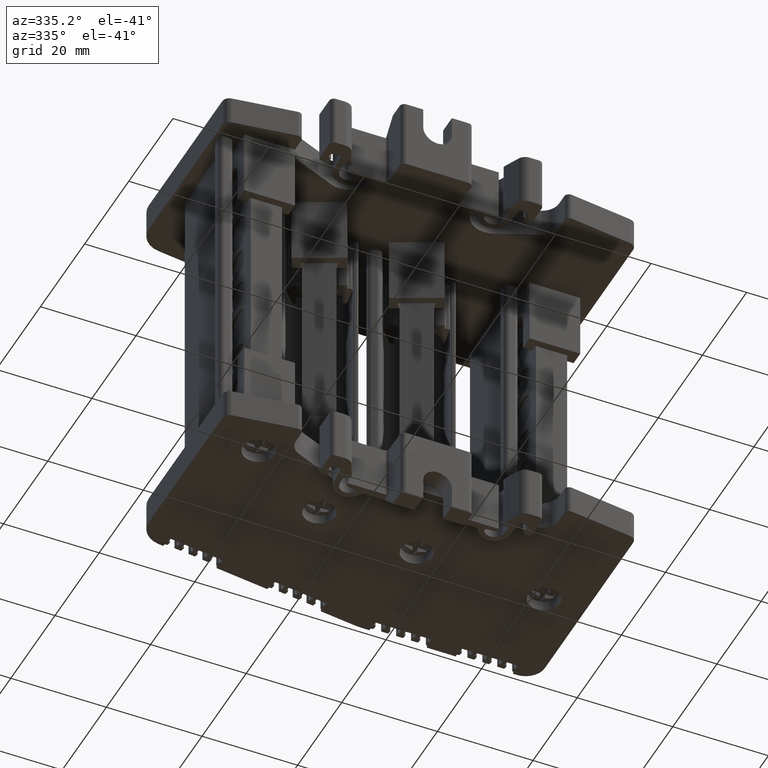
[diagram: clean part render]
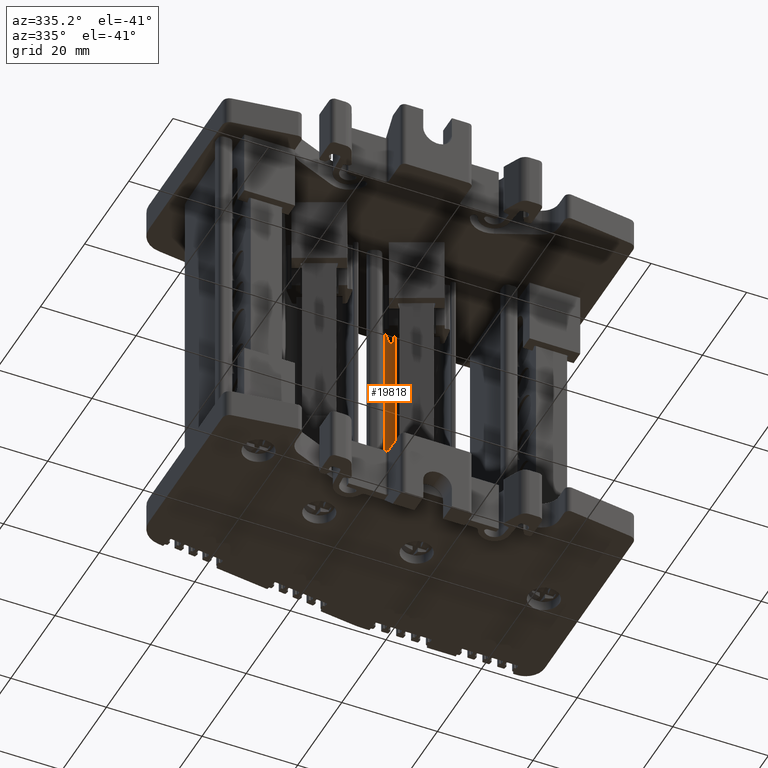
[diagram: same view with one face highlighted and labeled with its STEP entity id]
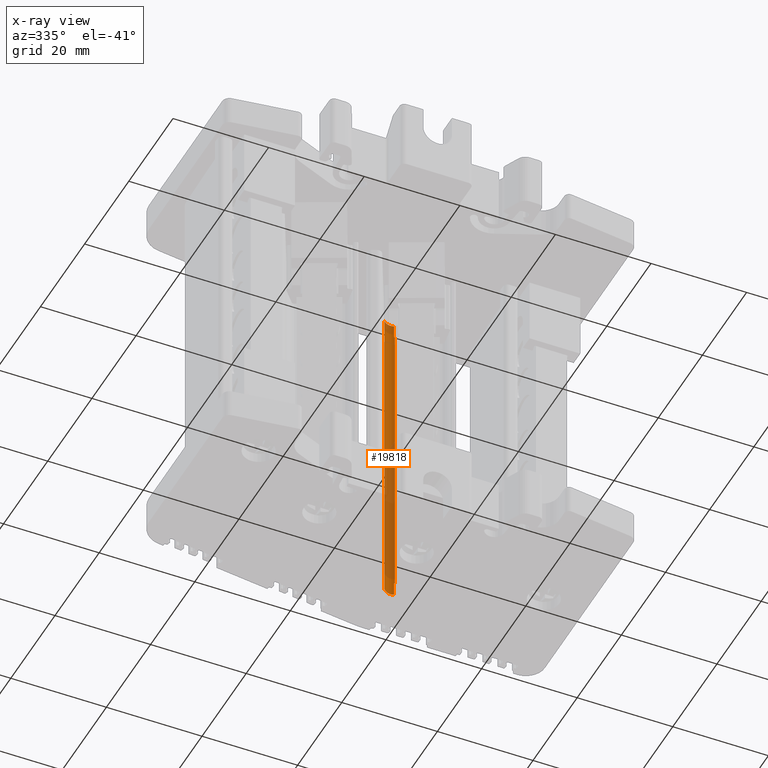
[diagram: x-ray of the same camera — body ghosted, the highlighted face saturated]
A machine part, auxiliary view. The second image highlights one B-rep face of the part: STEP entity #19818.
The next image is the same camera in x-ray: the body ghosted, the highlighted face saturated — about 52% of this face is hidden behind the body in this view.
In plain terms, the highlighted cylindrical surface (edge-blend (fillet) strip) has radius 1.9992 mm, axis along (0, 0, 1).
Its self-contained STEP definition (entity closure, byte-faithful):
#2941 = EDGE_CURVE ( 'NONE', #79141, #79371, #50618, .T. ) ;
#2957 = EDGE_CURVE ( 'NONE', #79141, #79167, #42140, .T. ) ;
#2988 = EDGE_CURVE ( 'NONE', #79219, #79167, #50624, .T. ) ;
#3087 = EDGE_CURVE ( 'NONE', #79365, #79455, #44871, .T. ) ;
#17843 = EDGE_CURVE ( 'NONE', #79219, #90535, #42958, .T. ) ;
#17846 = EDGE_CURVE ( 'NONE', #90479, #79365, #42889, .T. ) ;
#17889 = EDGE_CURVE ( 'NONE', #90535, #90479, #36209, .T. ) ;
#19343 = EDGE_CURVE ( 'NONE', #79455, #79371, #56023, .T. ) ;
#19818 = ADVANCED_FACE ( 'NONE', ( #58633 ), #58621, .F. ) ;
#36076 = VECTOR ( 'NONE', #42884, 1000.000000000000000 ) ;
#36113 = VECTOR ( 'NONE', #42924, 1000.000000000000000 ) ;
#36209 = CIRCLE ( 'NONE', #36261, 1.999242424225180900 ) ;
#36261 = AXIS2_PLACEMENT_3D ( 'NONE', #43224, #43154, #43219 ) ;
#36694 = VECTOR ( 'NONE', #42214, 1000.000000000000000 ) ;
#42095 = CARTESIAN_POINT ( 'NONE',  ( 404.2904691690483800, -74.62345816228720700, 93.46606924480110500 ) ) ;
#42098 = CARTESIAN_POINT ( 'NONE',  ( 404.2359931160872900, -74.60092516573418200, 93.46485649806356800 ) ) ;
#42129 = CARTESIAN_POINT ( 'NONE',  ( 404.1805917075998900, -74.58083027030679100, 93.46243124703343600 ) ) ;
#42136 = CARTESIAN_POINT ( 'NONE',  ( 404.3438112588409000, -74.64833198725968100, 93.46606948724594600 ) ) ;
#42140 = LINE ( 'NONE', #42141, #36694 ) ;
#42141 = CARTESIAN_POINT ( 'NONE',  ( 404.3438112588399900, -74.64833198726478300, 28.89408527322718700 ) ) ;
#42214 = DIRECTION ( 'NONE',  ( -1.405136094420118500E-014, -7.901384721789584400E-014, -1.000000000000000000 ) ) ;
#42299 = CARTESIAN_POINT ( 'NONE',  ( 404.2904691685805000, -74.62345816207448500, 31.42314675524807300 ) ) ;
#42303 = CARTESIAN_POINT ( 'NONE',  ( 404.3438112588384600, -74.64833198726384500, 31.42314651277999000 ) ) ;
#42310 = CARTESIAN_POINT ( 'NONE',  ( 404.2359931155849600, -74.60092516555535300, 31.42435950198650800 ) ) ;
#42320 = CARTESIAN_POINT ( 'NONE',  ( 404.1805917075418500, -74.58083027029094600, 31.42678475299528900 ) ) ;
#42884 = DIRECTION ( 'NONE',  ( -1.978075936925588300E-014, 9.647720971050220300E-015, 1.000000000000000000 ) ) ;
#42889 = LINE ( 'NONE', #42931, #36076 ) ;
#42924 = DIRECTION ( 'NONE',  ( -1.405136094420118500E-014, -7.901384721789584400E-014, -1.000000000000000000 ) ) ;
#42931 = CARTESIAN_POINT ( 'NONE',  ( 401.7019877127114000, -75.58385077028521000, 28.89408527322880700 ) ) ;
#42940 = CARTESIAN_POINT ( 'NONE',  ( 404.1805917075419100, -74.58083027029115900, 28.89408527322718400 ) ) ;
#42958 = LINE ( 'NONE', #42940, #36113 ) ;
#43154 = DIRECTION ( 'NONE',  ( 1.405136094420118500E-014, 7.901384721789583100E-014, 1.000000000000000000 ) ) ;
#43219 = DIRECTION ( 'NONE',  ( 0.0000000000000000000, -1.000000000000000000, 7.982751759167882200E-014 ) ) ;
#43224 = CARTESIAN_POINT ( 'NONE',  ( 403.4988949007092200, -76.46026096451110700, 28.59460800001191300 ) ) ;
#44871 = CIRCLE ( 'NONE', #44897, 1.999242424225180900 ) ;
#44897 = AXIS2_PLACEMENT_3D ( 'NONE', #48616, #48672, #48589 ) ;
#48589 = DIRECTION ( 'NONE',  ( 0.0000000000000000000, -1.000000000000000000, 7.635675595725800700E-014 ) ) ;
#48616 = CARTESIAN_POINT ( 'NONE',  ( 403.4988949007101800, -76.46026096450575000, 96.12882012113777800 ) ) ;
#48672 = DIRECTION ( 'NONE',  ( -1.405136094420118500E-014, -7.901384721789583100E-014, -1.000000000000000000 ) ) ;
#50618 = B_SPLINE_CURVE_WITH_KNOTS ( 'NONE', 3,
 ( #42136, #42095, #42098, #42129 ),
 .UNSPECIFIED., .F., .F.,
 ( 4, 4 ),
 ( 0.0000000000000000000, 1.000000000000000000 ),
 .UNSPECIFIED. ) ;
#50624 = B_SPLINE_CURVE_WITH_KNOTS ( 'NONE', 3,
 ( #42320, #42310, #42299, #42303 ),
 .UNSPECIFIED., .F., .F.,
 ( 4, 4 ),
 ( 0.0000000000000000000, 1.000000000000000000 ),
 .UNSPECIFIED. ) ;
#52845 = AXIS2_PLACEMENT_3D ( 'NONE', #58614, #58622, #58623 ) ;
#54028 = VECTOR ( 'NONE', #56030, 1000.000000000000000 ) ;
#56011 = CARTESIAN_POINT ( 'NONE',  ( 404.1805917075996600, -74.58083027031212000, 28.89408527322718400 ) ) ;
#56023 = LINE ( 'NONE', #56011, #54028 ) ;
#56030 = DIRECTION ( 'NONE',  ( -1.405136094420118500E-014, -7.901384721789584400E-014, -1.000000000000000000 ) ) ;
#58614 = CARTESIAN_POINT ( 'NONE',  ( 403.4988949007092200, -76.46026096451107900, 28.89408527322734300 ) ) ;
#58621 = CYLINDRICAL_SURFACE ( 'NONE', #52845, 1.999242424225180900 ) ;
#58622 = DIRECTION ( 'NONE',  ( 1.405136094420118500E-014, 7.901384721789583100E-014, 1.000000000000000000 ) ) ;
#58623 = DIRECTION ( 'NONE',  ( 0.0000000000000000000, -1.000000000000000000, 7.982751759167882200E-014 ) ) ;
#58633 = FACE_OUTER_BOUND ( 'NONE', #80354, .T. ) ;
#69904 = CARTESIAN_POINT ( 'NONE',  ( 404.3438112588409000, -74.64833198725968100, 93.46606948724594600 ) ) ;
#69919 = CARTESIAN_POINT ( 'NONE',  ( 404.3438112588384600, -74.64833198726384500, 31.42314651277999000 ) ) ;
#70961 = CARTESIAN_POINT ( 'NONE',  ( 404.1805917075418500, -74.58083027029094600, 31.42678475299528900 ) ) ;
#70971 = CARTESIAN_POINT ( 'NONE',  ( 401.7019877127106000, -75.58385077028359000, 96.12882012113773600 ) ) ;
#70991 = CARTESIAN_POINT ( 'NONE',  ( 404.1805917075998900, -74.58083027030679100, 93.46243124703343600 ) ) ;
#71072 = CARTESIAN_POINT ( 'NONE',  ( 404.1805917076005700, -74.58083027030679100, 96.12882012113757900 ) ) ;
#75613 = CARTESIAN_POINT ( 'NONE',  ( 401.7019877127107700, -75.58385077028658800, 28.59460800001198400 ) ) ;
#75617 = CARTESIAN_POINT ( 'NONE',  ( 404.1805917075420800, -74.58083027029124400, 28.59460800001176000 ) ) ;
#79141 = VERTEX_POINT ( 'NONE', #69904 ) ;
#79167 = VERTEX_POINT ( 'NONE', #69919 ) ;
#79219 = VERTEX_POINT ( 'NONE', #70961 ) ;
#79365 = VERTEX_POINT ( 'NONE', #70971 ) ;
#79371 = VERTEX_POINT ( 'NONE', #70991 ) ;
#79455 = VERTEX_POINT ( 'NONE', #71072 ) ;
#80354 = EDGE_LOOP ( 'NONE', ( #88852, #88819, #88854, #88837, #88993, #88893, #88821, #88930 ) ) ;
#88819 = ORIENTED_EDGE ( 'NONE', *, *, #2988, .T. ) ;
#88821 = ORIENTED_EDGE ( 'NONE', *, *, #17846, .F. ) ;
#88837 = ORIENTED_EDGE ( 'NONE', *, *, #2941, .T. ) ;
#88852 = ORIENTED_EDGE ( 'NONE', *, *, #17843, .F. ) ;
#88854 = ORIENTED_EDGE ( 'NONE', *, *, #2957, .F. ) ;
#88893 = ORIENTED_EDGE ( 'NONE', *, *, #3087, .F. ) ;
#88930 = ORIENTED_EDGE ( 'NONE', *, *, #17889, .F. ) ;
#88993 = ORIENTED_EDGE ( 'NONE', *, *, #19343, .F. ) ;
#90479 = VERTEX_POINT ( 'NONE', #75613 ) ;
#90535 = VERTEX_POINT ( 'NONE', #75617 ) ;